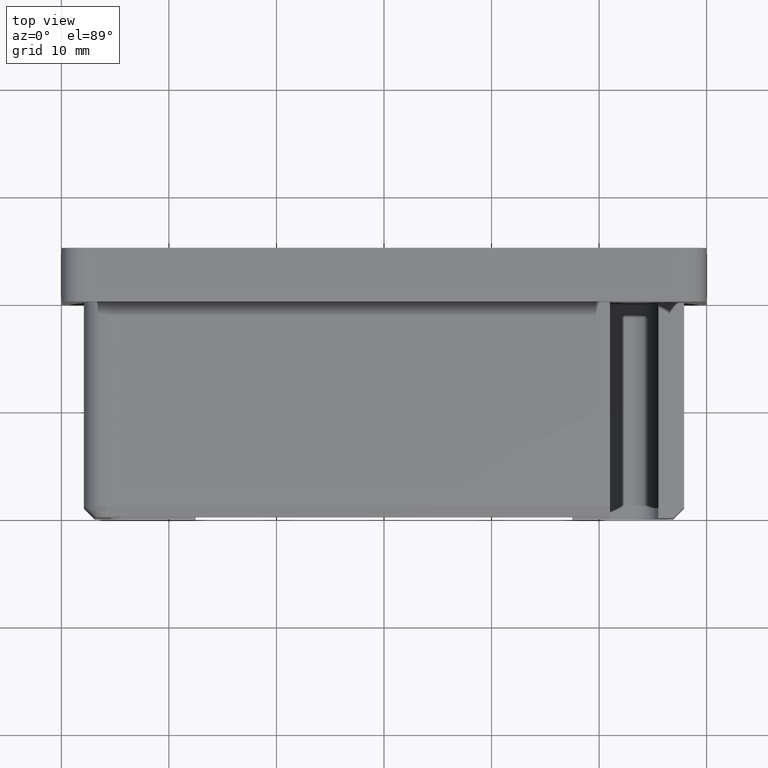
[diagram: clean part render]
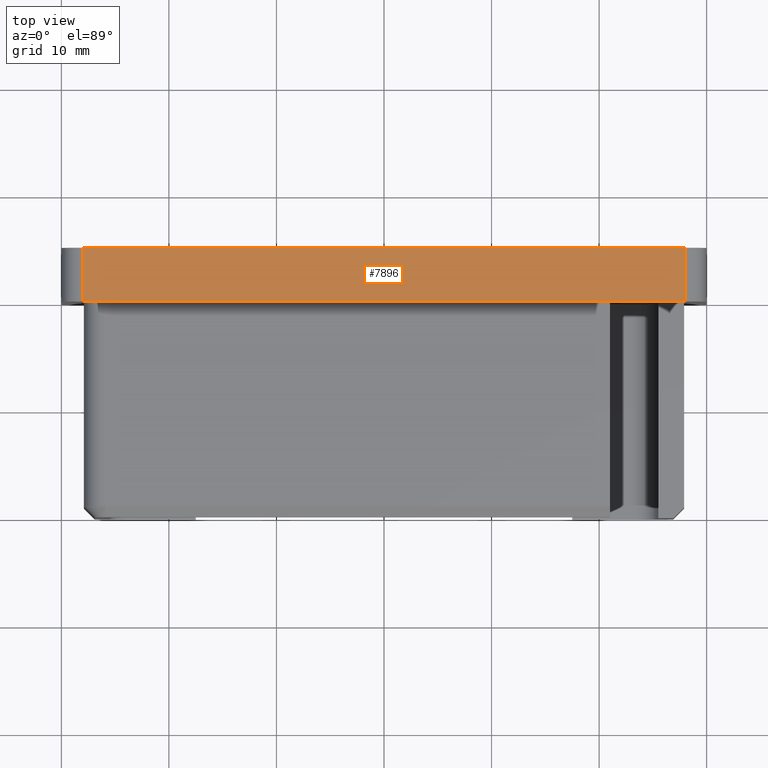
[diagram: same view with one face highlighted and labeled with its STEP entity id]
A machine part, top view. The second image highlights one B-rep face of the part: STEP entity #7896.
In plain terms, the highlighted planar face has unit normal (0, 0, -1).
Its self-contained STEP definition (entity closure, byte-faithful):
#478 = CARTESIAN_POINT ( 'NONE',  ( -29.99999999999998934, 5.000000000000000000, 10.00000000000000000 ) ) ;
#516 = DIRECTION ( 'NONE',  ( 0.000000000000000000, -1.000000000000000000, 0.000000000000000000 ) ) ;
#583 = DIRECTION ( 'NONE',  ( 1.000000000000000000, 0.000000000000000000, 0.000000000000000000 ) ) ;
#652 = VERTEX_POINT ( 'NONE', #9126 ) ;
#1438 = AXIS2_PLACEMENT_3D ( 'NONE', #10669, #3528, #5933 ) ;
#1684 = EDGE_CURVE ( 'NONE', #1737, #652, #5660, .T. ) ;
#1737 = VERTEX_POINT ( 'NONE', #4212 ) ;
#1788 = VECTOR ( 'NONE', #8606, 1000.000000000000000 ) ;
#2034 = ORIENTED_EDGE ( 'NONE', *, *, #9890, .T. ) ;
#2403 = ORIENTED_EDGE ( 'NONE', *, *, #12323, .T. ) ;
#3322 = EDGE_LOOP ( 'NONE', ( #2034, #7817, #9162, #2403 ) ) ;
#3405 = EDGE_CURVE ( 'NONE', #4548, #652, #10183, .T. ) ;
#3413 = PLANE ( 'NONE',  #1438 ) ;
#3528 = DIRECTION ( 'NONE',  ( 0.000000000000000000, 0.000000000000000000, -1.000000000000000000 ) ) ;
#4212 = CARTESIAN_POINT ( 'NONE',  ( -27.99999999999998934, 5.000000000000000000, 10.00000000000000000 ) ) ;
#4548 = VERTEX_POINT ( 'NONE', #8991 ) ;
#5504 = LINE ( 'NONE', #6432, #13865 ) ;
#5660 = LINE ( 'NONE', #478, #7341 ) ;
#5933 = DIRECTION ( 'NONE',  ( -1.000000000000000000, 0.000000000000000000, -0.000000000000000000 ) ) ;
#6197 = VERTEX_POINT ( 'NONE', #13629 ) ;
#6369 = DIRECTION ( 'NONE',  ( -0.000000000000000000, 1.000000000000000000, -0.000000000000000000 ) ) ;
#6432 = CARTESIAN_POINT ( 'NONE',  ( -27.99999999999998934, 5.000000000000000000, 10.00000000000000000 ) ) ;
#7341 = VECTOR ( 'NONE', #583, 1000.000000000000000 ) ;
#7609 = CARTESIAN_POINT ( 'NONE',  ( -29.99999999999998934, 0.000000000000000000, 10.00000000000000000 ) ) ;
#7817 = ORIENTED_EDGE ( 'NONE', *, *, #3405, .T. ) ;
#7896 = ADVANCED_FACE ( 'NONE', ( #10909 ), #3413, .F. ) ;
#8606 = DIRECTION ( 'NONE',  ( 1.000000000000000000, 0.000000000000000000, 0.000000000000000000 ) ) ;
#8991 = CARTESIAN_POINT ( 'NONE',  ( 28.00000000000000711, 0.000000000000000000, 10.00000000000000000 ) ) ;
#9126 = CARTESIAN_POINT ( 'NONE',  ( 28.00000000000000711, 5.000000000000000000, 10.00000000000000000 ) ) ;
#9162 = ORIENTED_EDGE ( 'NONE', *, *, #1684, .F. ) ;
#9814 = VECTOR ( 'NONE', #6369, 1000.000000000000000 ) ;
#9890 = EDGE_CURVE ( 'NONE', #6197, #4548, #13316, .T. ) ;
#10183 = LINE ( 'NONE', #14784, #9814 ) ;
#10669 = CARTESIAN_POINT ( 'NONE',  ( -29.99999999999998934, 5.000000000000000000, 10.00000000000000000 ) ) ;
#10909 = FACE_OUTER_BOUND ( 'NONE', #3322, .T. ) ;
#12323 = EDGE_CURVE ( 'NONE', #1737, #6197, #5504, .T. ) ;
#13316 = LINE ( 'NONE', #7609, #1788 ) ;
#13629 = CARTESIAN_POINT ( 'NONE',  ( -27.99999999999998934, 0.000000000000000000, 10.00000000000000000 ) ) ;
#13865 = VECTOR ( 'NONE', #516, 1000.000000000000000 ) ;
#14784 = CARTESIAN_POINT ( 'NONE',  ( 28.00000000000000711, 5.000000000000000000, 10.00000000000000000 ) ) ;